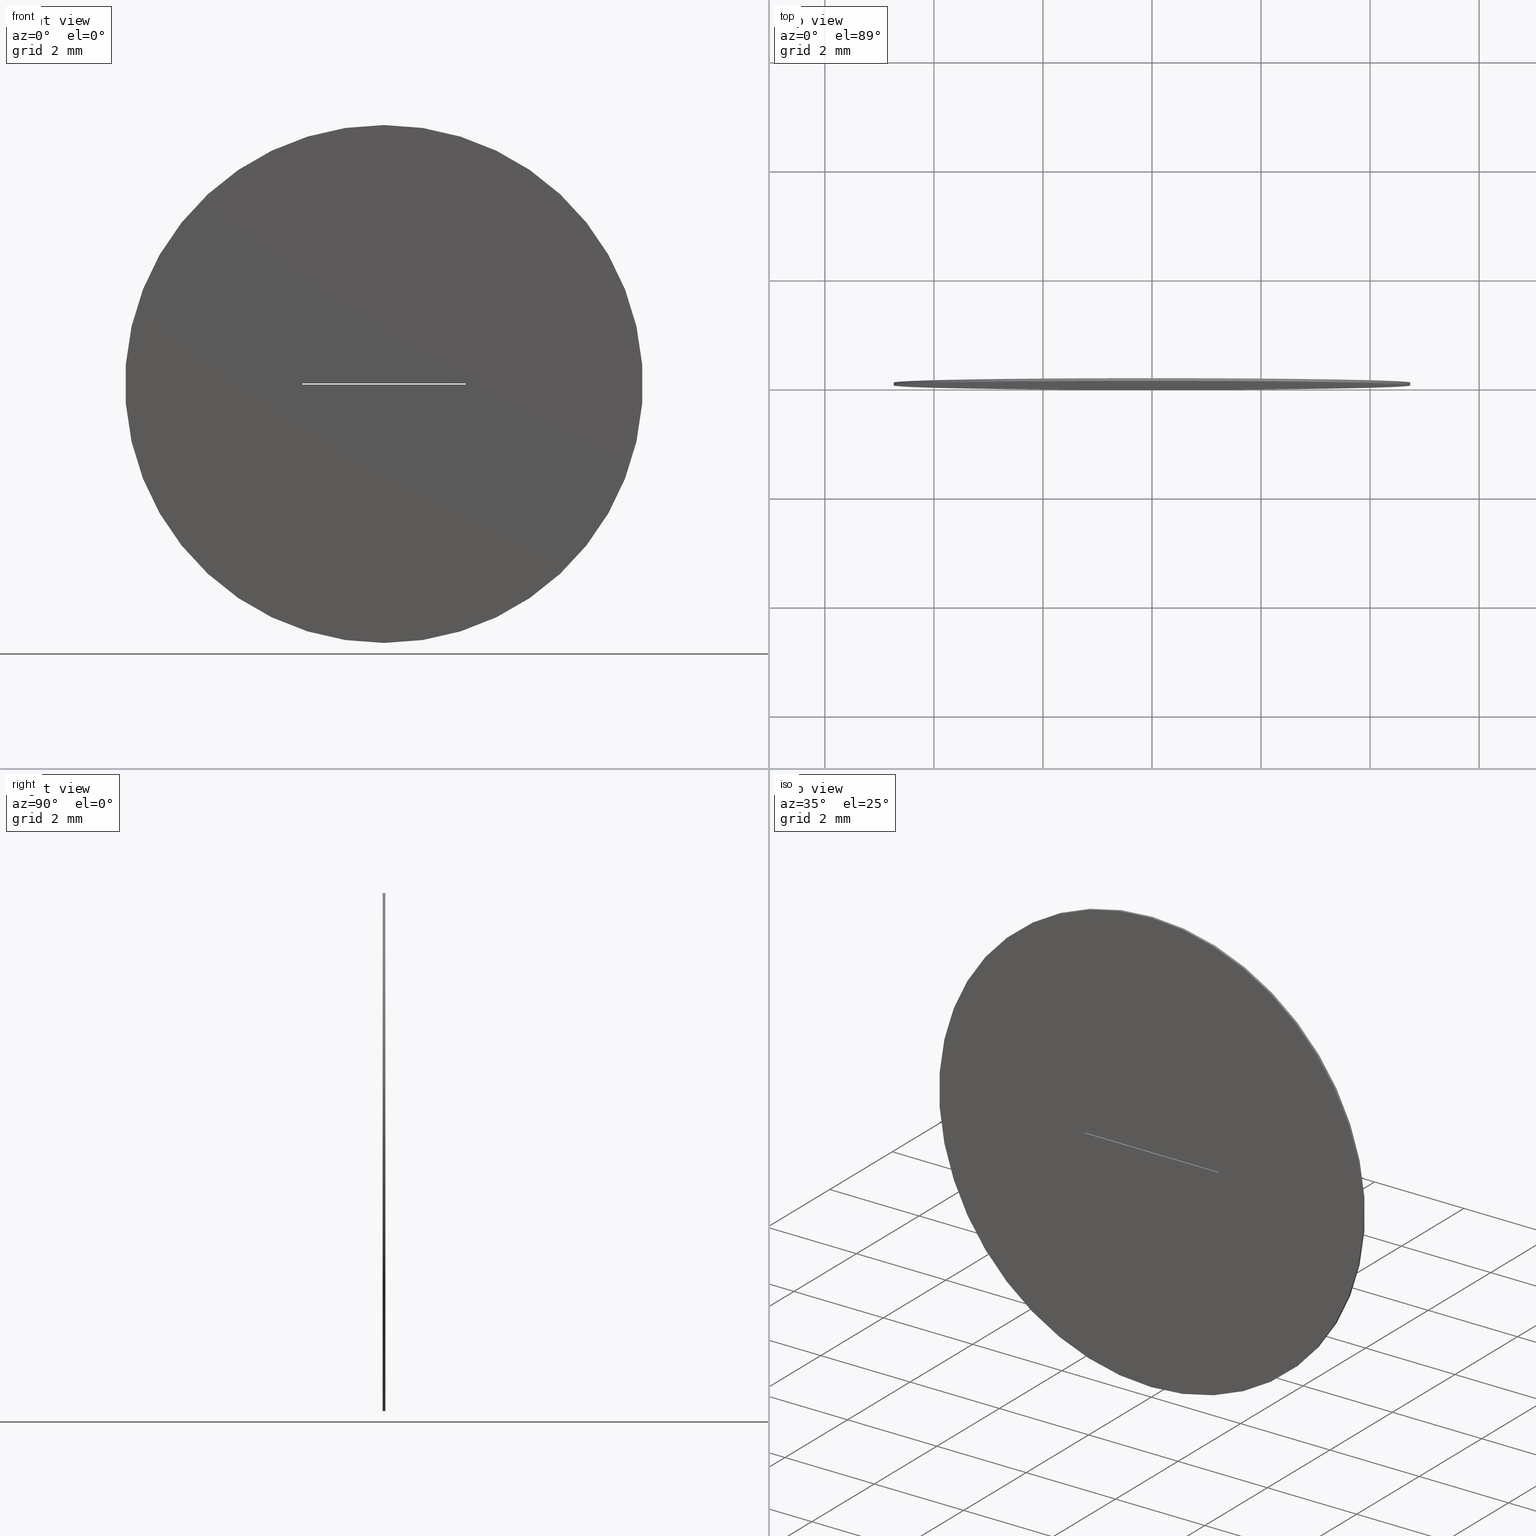
[diagram: canonical four-view strip — front | top / right | iso, engineering-drawing reading convention]
A machine part, canonical four-view strip (front | top / right | iso — engineering-drawing reading convention). The complete STEP part file that produces these views, byte-faithful:
ISO-10303-21;
HEADER;
FILE_DESCRIPTION (( 'STEP AP203' ),
    '1' );
FILE_NAME ('1.5.4.3-ZXG-9.5-20.STEP',
    '2024-05-29T06:48:23',
    ( '' ),
    ( '' ),
    'SwSTEP 2.0',
    'SolidWorks 2021',
    '' );
FILE_SCHEMA (( 'CONFIG_CONTROL_DESIGN' ));
ENDSEC;

DATA;
#1 = APPROVAL_ROLE ( '' ) ;
#2 = CARTESIAN_POINT ( 'NONE',  ( -1.500000000000000000, 0.05000000000000000278, -0.009999999999999998473 ) ) ;
#3 = DIRECTION ( 'NONE',  ( 0.000000000000000000, 1.000000000000000000, 0.000000000000000000 ) ) ;
#4 = VECTOR ( 'NONE', #85, 1000.000000000000000 ) ;
#5 = APPROVAL_DATE_TIME ( #172, #272 ) ;
#6 = CARTESIAN_POINT ( 'NONE',  ( -1.500000000000000000, 0.000000000000000000, 0.01000000000000000194 ) ) ;
#7 = FACE_BOUND ( 'NONE', #42, .T. ) ;
#8 = CARTESIAN_POINT ( 'NONE',  ( -1.500000000000000000, 0.05000000000000000278, 0.01000000000000000194 ) ) ;
#9 = DIRECTION ( 'NONE',  ( 0.000000000000000000, 0.000000000000000000, -1.000000000000000000 ) ) ;
#10 =( NAMED_UNIT ( * ) PLANE_ANGLE_UNIT ( ) SI_UNIT ( $, .RADIAN. ) );
#11 = CARTESIAN_POINT ( 'NONE',  ( 0.000000000000000000, 0.000000000000000000, 0.000000000000000000 ) ) ;
#12 = AXIS2_PLACEMENT_3D ( 'NONE', #252, #253, #300 ) ;
#13 = CARTESIAN_POINT ( 'NONE',  ( 0.000000000000000000, 0.05000000000000000278, -4.750000000000000000 ) ) ;
#14 = CC_DESIGN_DATE_AND_TIME_ASSIGNMENT ( #230, #287, ( #48 ) ) ;
#15 = DIRECTION ( 'NONE',  ( 0.000000000000000000, 0.000000000000000000, 1.000000000000000000 ) ) ;
#16 = CALENDAR_DATE ( 2024, 29, 5 ) ;
#17 = AXIS2_PLACEMENT_3D ( 'NONE', #177, #274, #9 ) ;
#18 = APPROVAL_STATUS ( 'not_yet_approved' ) ;
#19 = VERTEX_POINT ( 'NONE', #2 ) ;
#20 = ORIENTED_EDGE ( 'NONE', *, *, #175, .F. ) ;
#21 = EDGE_LOOP ( 'NONE', ( #285, #138 ) ) ;
#22 = AXIS2_PLACEMENT_3D ( 'NONE', #96, #201, #176 ) ;
#23 = ADVANCED_FACE ( 'NONE', ( #174 ), #53, .T. ) ;
#24 = PERSON_AND_ORGANIZATION ( #246, #29 ) ;
#25 = ORIENTED_EDGE ( 'NONE', *, *, #279, .F. ) ;
#26 = ORIENTED_EDGE ( 'NONE', *, *, #221, .T. ) ;
#27 = PLANE ( 'NONE',  #22 ) ;
#28 = APPROVAL_PERSON_ORGANIZATION ( #261, #272, #74 ) ;
#29 = ORGANIZATION ( 'δָ��', 'δָ��', '' ) ;
#30 = EDGE_CURVE ( 'NONE', #211, #290, #218, .T. ) ;
#31 = DIRECTION ( 'NONE',  ( 0.000000000000000000, -0.000000000000000000, 1.000000000000000000 ) ) ;
#32 = CARTESIAN_POINT ( 'NONE',  ( 5.817072295949927426E-16, 0.05000000000000000278, 4.750000000000000000 ) ) ;
#33 = PLANE ( 'NONE',  #102 ) ;
#34 = CC_DESIGN_APPROVAL ( #272, ( #48 ) ) ;
#35 = LINE ( 'NONE', #271, #244 ) ;
#36 = CARTESIAN_POINT ( 'NONE',  ( -1.500000000000000000, 0.000000000000000000, 0.01000000000000000194 ) ) ;
#37 = APPROVAL_PERSON_ORGANIZATION ( #206, #144, #1 ) ;
#38 = APPLICATION_PROTOCOL_DEFINITION ( 'international standard', 'config_control_design', 1994, #276 ) ;
#39 = PERSON_AND_ORGANIZATION ( #246, #29 ) ;
#40 = VECTOR ( 'NONE', #185, 1000.000000000000000 ) ;
#41 = EDGE_LOOP ( 'NONE', ( #91, #147, #26, #194 ) ) ;
#42 = EDGE_LOOP ( 'NONE', ( #188, #140, #89, #25 ) ) ;
#43 = APPLICATION_PROTOCOL_DEFINITION ( 'international standard', 'config_control_design', 1994, #212 ) ;
#44 = PERSON_AND_ORGANIZATION_ROLE ( 'classification_officer' ) ;
#45 = VERTEX_POINT ( 'NONE', #198 ) ;
#46 = CALENDAR_DATE ( 2024, 29, 5 ) ;
#47 = ORIENTED_EDGE ( 'NONE', *, *, #279, .T. ) ;
#48 = SECURITY_CLASSIFICATION ( '', '', #113 ) ;
#49 = PRODUCT_DEFINITION_SHAPE ( 'NONE', 'NONE',  #213 ) ;
#50 = ORIENTED_EDGE ( 'NONE', *, *, #119, .T. ) ;
#51 = CC_DESIGN_PERSON_AND_ORGANIZATION_ASSIGNMENT ( #24, #142, ( #213 ) ) ;
#52 = CARTESIAN_POINT ( 'NONE',  ( 1.500000000000000000, 0.05000000000000000278, -0.009999999999999998473 ) ) ;
#53 = PLANE ( 'NONE',  #17 ) ;
#54 = LOCAL_TIME ( 14, 48, 23.00000000000000000, #169 ) ;
#55 = DIRECTION ( 'NONE',  ( -0.000000000000000000, -1.000000000000000000, -0.000000000000000000 ) ) ;
#56 = LINE ( 'NONE', #98, #160 ) ;
#57 = DIRECTION ( 'NONE',  ( -1.000000000000000000, 0.000000000000000000, 0.000000000000000000 ) ) ;
#58 = CIRCLE ( 'NONE', #151, 4.750000000000000000 ) ;
#59 = LINE ( 'NONE', #283, #231 ) ;
#60 = CYLINDRICAL_SURFACE ( 'NONE', #277, 4.750000000000000000 ) ;
#61 = ADVANCED_FACE ( 'NONE', ( #295 ), #299, .T. ) ;
#62 = FACE_OUTER_BOUND ( 'NONE', #265, .T. ) ;
#63 = LINE ( 'NONE', #161, #40 ) ;
#64 = ADVANCED_FACE ( 'NONE', ( #150, #217 ), #27, .F. ) ;
#65 = PRODUCT_DEFINITION_FORMATION_WITH_SPECIFIED_SOURCE ( '�κ�', '', #99, .NOT_KNOWN. ) ;
#66 = APPROVAL_DATE_TIME ( #88, #286 ) ;
#67 = ORIENTED_EDGE ( 'NONE', *, *, #156, .T. ) ;
#68 = PERSON_AND_ORGANIZATION_ROLE ( 'design_supplier' ) ;
#69 = ORIENTED_EDGE ( 'NONE', *, *, #95, .T. ) ;
#70 = ORIENTED_EDGE ( 'NONE', *, *, #291, .T. ) ;
#71 = APPROVAL_STATUS ( 'not_yet_approved' ) ;
#72 = EDGE_LOOP ( 'NONE', ( #241, #186, #170, #171 ) ) ;
#73 = AXIS2_PLACEMENT_3D ( 'NONE', #11, #278, #130 ) ;
#74 = APPROVAL_ROLE ( '' ) ;
#75 = DIRECTION ( 'NONE',  ( 0.000000000000000000, 0.000000000000000000, -1.000000000000000000 ) ) ;
#76 = ADVANCED_FACE ( 'NONE', ( #245 ), #294, .T. ) ;
#77 = DIRECTION ( 'NONE',  ( 0.000000000000000000, 0.000000000000000000, 1.000000000000000000 ) ) ;
#78 = DIRECTION ( 'NONE',  ( 0.000000000000000000, 0.000000000000000000, 1.000000000000000000 ) ) ;
#79 = AXIS2_PLACEMENT_3D ( 'NONE', #83, #15, #108 ) ;
#80 = FACE_OUTER_BOUND ( 'NONE', #309, .T. ) ;
#81 = CARTESIAN_POINT ( 'NONE',  ( 1.500000000000000000, 0.05000000000000000278, 0.01000000000000000194 ) ) ;
#82 = UNCERTAINTY_MEASURE_WITH_UNIT (LENGTH_MEASURE( 1.000000000000000082E-05 ), #226, 'distance_accuracy_value', 'NONE');
#83 = CARTESIAN_POINT ( 'NONE',  ( -1.500000000000000000, 0.05000000000000000278, -0.009999999999999998473 ) ) ;
#84 = CARTESIAN_POINT ( 'NONE',  ( 0.000000000000000000, 0.000000000000000000, 0.000000000000000000 ) ) ;
#85 = DIRECTION ( 'NONE',  ( -0.000000000000000000, -0.000000000000000000, -1.000000000000000000 ) ) ;
#86 = EDGE_CURVE ( 'NONE', #290, #118, #153, .T. ) ;
#87 = LINE ( 'NONE', #203, #189 ) ;
#88 = DATE_AND_TIME ( #165, #116 ) ;
#89 = ORIENTED_EDGE ( 'NONE', *, *, #291, .F. ) ;
#90 = PERSON_AND_ORGANIZATION ( #246, #29 ) ;
#91 = ORIENTED_EDGE ( 'NONE', *, *, #156, .F. ) ;
#92 = AXIS2_PLACEMENT_3D ( 'NONE', #199, #125, #154 ) ;
#93 = ORIENTED_EDGE ( 'NONE', *, *, #192, .F. ) ;
#94 = VERTEX_POINT ( 'NONE', #97 ) ;
#95 = EDGE_CURVE ( 'NONE', #163, #45, #129, .T. ) ;
#96 = CARTESIAN_POINT ( 'NONE',  ( 0.000000000000000000, 0.000000000000000000, 0.000000000000000000 ) ) ;
#97 = CARTESIAN_POINT ( 'NONE',  ( 1.500000000000000000, 0.05000000000000000278, -0.009999999999999998473 ) ) ;
#98 = CARTESIAN_POINT ( 'NONE',  ( -1.500000000000000000, 0.05000000000000000278, -0.009999999999999998473 ) ) ;
#99 = PRODUCT ( '1.5.4.3-ZXG-9.5-20', '1.5.4.3-ZXG-9.5-20', '', ( #263 ) ) ;
#100 = EDGE_CURVE ( 'NONE', #292, #118, #222, .T. ) ;
#101 = CARTESIAN_POINT ( 'NONE',  ( 1.500000000000000000, 0.000000000000000000, 0.01000000000000000194 ) ) ;
#102 = AXIS2_PLACEMENT_3D ( 'NONE', #215, #3, #31 ) ;
#103 = CYLINDRICAL_SURFACE ( 'NONE', #297, 4.750000000000000000 ) ;
#104 = DIRECTION ( 'NONE',  ( 0.000000000000000000, 1.000000000000000000, 0.000000000000000000 ) ) ;
#105 = DIRECTION ( 'NONE',  ( -0.000000000000000000, -1.000000000000000000, -0.000000000000000000 ) ) ;
#106 = EDGE_CURVE ( 'NONE', #120, #290, #35, .T. ) ;
#107 = AXIS2_PLACEMENT_3D ( 'NONE', #8, #75, #267 ) ;
#108 = DIRECTION ( 'NONE',  ( 1.000000000000000000, 0.000000000000000000, -0.000000000000000000 ) ) ;
#109 = COORDINATED_UNIVERSAL_TIME_OFFSET ( 8, 0, .AHEAD. ) ;
#110 = CC_DESIGN_PERSON_AND_ORGANIZATION_ASSIGNMENT ( #232, #259, ( #65 ) ) ;
#111 = VECTOR ( 'NONE', #105, 1000.000000000000000 ) ;
#112 = ORIENTED_EDGE ( 'NONE', *, *, #256, .T. ) ;
#113 = SECURITY_CLASSIFICATION_LEVEL ( 'unclassified' ) ;
#114 = ORIENTED_EDGE ( 'NONE', *, *, #270, .T. ) ;
#115 = ADVANCED_BREP_SHAPE_REPRESENTATION ( '1.5.4.3-ZXG-9.5-20', ( #275, #164 ), #122 ) ;
#116 = LOCAL_TIME ( 14, 48, 23.00000000000000000, #234 ) ;
#117 = ORIENTED_EDGE ( 'NONE', *, *, #30, .T. ) ;
#118 = VERTEX_POINT ( 'NONE', #101 ) ;
#119 = EDGE_CURVE ( 'NONE', #214, #120, #173, .T. ) ;
#120 = VERTEX_POINT ( 'NONE', #266 ) ;
#121 = DIRECTION ( 'NONE',  ( -0.000000000000000000, -1.000000000000000000, -0.000000000000000000 ) ) ;
#122 =( GEOMETRIC_REPRESENTATION_CONTEXT ( 3 ) GLOBAL_UNCERTAINTY_ASSIGNED_CONTEXT ( ( #82 ) ) GLOBAL_UNIT_ASSIGNED_CONTEXT ( ( #226, #10, #180 ) ) REPRESENTATION_CONTEXT ( 'NONE', 'WORKASPACE' ) );
#123 = LINE ( 'NONE', #32, #200 ) ;
#124 = CARTESIAN_POINT ( 'NONE',  ( -1.500000000000000000, 0.05000000000000000278, -0.009999999999999998473 ) ) ;
#125 = DIRECTION ( 'NONE',  ( 0.000000000000000000, 1.000000000000000000, 0.000000000000000000 ) ) ;
#126 = LINE ( 'NONE', #127, #302 ) ;
#127 = CARTESIAN_POINT ( 'NONE',  ( -1.500000000000000000, 0.05000000000000000278, 0.01000000000000000194 ) ) ;
#128 = CC_DESIGN_SECURITY_CLASSIFICATION ( #48, ( #65 ) ) ;
#129 = CIRCLE ( 'NONE', #92, 4.750000000000000000 ) ;
#130 = DIRECTION ( 'NONE',  ( 0.000000000000000000, 0.000000000000000000, 1.000000000000000000 ) ) ;
#131 = CC_DESIGN_DATE_AND_TIME_ASSIGNMENT ( #137, #190, ( #213 ) ) ;
#132 = ADVANCED_FACE ( 'NONE', ( #243 ), #103, .T. ) ;
#133 = DIRECTION ( 'NONE',  ( 0.000000000000000000, 0.000000000000000000, 1.000000000000000000 ) ) ;
#134 = CC_DESIGN_PERSON_AND_ORGANIZATION_ASSIGNMENT ( #90, #68, ( #65 ) ) ;
#135 = COORDINATED_UNIVERSAL_TIME_OFFSET ( 8, 0, .AHEAD. ) ;
#136 = VECTOR ( 'NONE', #197, 1000.000000000000000 ) ;
#137 = DATE_AND_TIME ( #16, #269 ) ;
#138 = ORIENTED_EDGE ( 'NONE', *, *, #248, .F. ) ;
#139 = ORIENTED_EDGE ( 'NONE', *, *, #106, .T. ) ;
#140 = ORIENTED_EDGE ( 'NONE', *, *, #256, .F. ) ;
#141 = DATE_AND_TIME ( #46, #54 ) ;
#142 = PERSON_AND_ORGANIZATION_ROLE ( 'creator' ) ;
#143 = ORIENTED_EDGE ( 'NONE', *, *, #100, .T. ) ;
#144 = APPROVAL ( #18, 'δָ��' ) ;
#145 = ADVANCED_FACE ( 'NONE', ( #80, #7 ), #33, .T. ) ;
#146 = COORDINATED_UNIVERSAL_TIME_OFFSET ( 8, 0, .AHEAD. ) ;
#147 = ORIENTED_EDGE ( 'NONE', *, *, #301, .F. ) ;
#148 = SHAPE_DEFINITION_REPRESENTATION ( #49, #115 ) ;
#149 = DIRECTION ( 'NONE',  ( -0.000000000000000000, -1.000000000000000000, -0.000000000000000000 ) ) ;
#150 = FACE_OUTER_BOUND ( 'NONE', #21, .T. ) ;
#151 = AXIS2_PLACEMENT_3D ( 'NONE', #84, #104, #158 ) ;
#152 = LINE ( 'NONE', #124, #205 ) ;
#153 = LINE ( 'NONE', #6, #155 ) ;
#154 = DIRECTION ( 'NONE',  ( 0.000000000000000000, 0.000000000000000000, 1.000000000000000000 ) ) ;
#155 = VECTOR ( 'NONE', #196, 1000.000000000000000 ) ;
#156 = EDGE_CURVE ( 'NONE', #163, #191, #123, .T. ) ;
#157 = DIRECTION ( 'NONE',  ( -0.000000000000000000, -1.000000000000000000, -0.000000000000000000 ) ) ;
#158 = DIRECTION ( 'NONE',  ( 0.000000000000000000, 0.000000000000000000, 1.000000000000000000 ) ) ;
#159 = DIRECTION ( 'NONE',  ( 0.000000000000000000, 0.000000000000000000, -1.000000000000000000 ) ) ;
#160 = VECTOR ( 'NONE', #296, 1000.000000000000000 ) ;
#161 = CARTESIAN_POINT ( 'NONE',  ( -1.500000000000000000, 0.05000000000000000278, -0.009999999999999998473 ) ) ;
#162 = PLANE ( 'NONE',  #79 ) ;
#163 = VERTEX_POINT ( 'NONE', #247 ) ;
#164 = AXIS2_PLACEMENT_3D ( 'NONE', #305, #133, #227 ) ;
#165 = CALENDAR_DATE ( 2024, 29, 5 ) ;
#166 = ORIENTED_EDGE ( 'NONE', *, *, #100, .F. ) ;
#167 = CALENDAR_DATE ( 2024, 29, 5 ) ;
#168 = ORIENTED_EDGE ( 'NONE', *, *, #86, .F. ) ;
#169 = COORDINATED_UNIVERSAL_TIME_OFFSET ( 8, 0, .AHEAD. ) ;
#170 = ORIENTED_EDGE ( 'NONE', *, *, #179, .T. ) ;
#171 = ORIENTED_EDGE ( 'NONE', *, *, #175, .T. ) ;
#172 = DATE_AND_TIME ( #219, #268 ) ;
#173 = LINE ( 'NONE', #249, #136 ) ;
#174 = FACE_OUTER_BOUND ( 'NONE', #258, .T. ) ;
#175 = EDGE_CURVE ( 'NONE', #19, #120, #56, .T. ) ;
#176 = DIRECTION ( 'NONE',  ( 0.000000000000000000, -0.000000000000000000, 1.000000000000000000 ) ) ;
#177 = CARTESIAN_POINT ( 'NONE',  ( -1.500000000000000000, 0.05000000000000000278, -0.009999999999999998473 ) ) ;
#178 = CARTESIAN_POINT ( 'NONE',  ( 0.000000000000000000, 0.05000000000000000278, 0.000000000000000000 ) ) ;
#179 = EDGE_CURVE ( 'NONE', #94, #19, #152, .T. ) ;
#180 =( NAMED_UNIT ( * ) SI_UNIT ( $, .STERADIAN. ) SOLID_ANGLE_UNIT ( ) );
#181 = CIRCLE ( 'NONE', #12, 4.750000000000000000 ) ;
#182 = DIRECTION ( 'NONE',  ( -0.000000000000000000, -1.000000000000000000, -0.000000000000000000 ) ) ;
#183 = CC_DESIGN_PERSON_AND_ORGANIZATION_ASSIGNMENT ( #39, #44, ( #48 ) ) ;
#184 = CARTESIAN_POINT ( 'NONE',  ( 5.817072295949927426E-16, 0.000000000000000000, 4.750000000000000000 ) ) ;
#185 = DIRECTION ( 'NONE',  ( 0.000000000000000000, 0.000000000000000000, 1.000000000000000000 ) ) ;
#186 = ORIENTED_EDGE ( 'NONE', *, *, #270, .F. ) ;
#187 = APPROVAL_ROLE ( '' ) ;
#188 = ORIENTED_EDGE ( 'NONE', *, *, #179, .F. ) ;
#189 = VECTOR ( 'NONE', #182, 1000.000000000000000 ) ;
#190 = DATE_TIME_ROLE ( 'creation_date' ) ;
#191 = VERTEX_POINT ( 'NONE', #184 ) ;
#192 = EDGE_CURVE ( 'NONE', #118, #214, #251, .T. ) ;
#193 = ORIENTED_EDGE ( 'NONE', *, *, #106, .F. ) ;
#194 = ORIENTED_EDGE ( 'NONE', *, *, #209, .T. ) ;
#195 = VECTOR ( 'NONE', #55, 1000.000000000000000 ) ;
#196 = DIRECTION ( 'NONE',  ( 1.000000000000000000, 0.000000000000000000, 0.000000000000000000 ) ) ;
#197 = DIRECTION ( 'NONE',  ( -1.000000000000000000, -0.000000000000000000, -0.000000000000000000 ) ) ;
#198 = CARTESIAN_POINT ( 'NONE',  ( 0.000000000000000000, 0.05000000000000000278, -4.750000000000000000 ) ) ;
#199 = CARTESIAN_POINT ( 'NONE',  ( 0.000000000000000000, 0.05000000000000000278, 0.000000000000000000 ) ) ;
#200 = VECTOR ( 'NONE', #121, 1000.000000000000000 ) ;
#201 = DIRECTION ( 'NONE',  ( 0.000000000000000000, 1.000000000000000000, 0.000000000000000000 ) ) ;
#202 = DIRECTION ( 'NONE',  ( -0.000000000000000000, -0.000000000000000000, -1.000000000000000000 ) ) ;
#203 = CARTESIAN_POINT ( 'NONE',  ( 1.500000000000000000, 0.05000000000000000278, -0.009999999999999998473 ) ) ;
#204 = CARTESIAN_POINT ( 'NONE',  ( 1.500000000000000000, 0.05000000000000000278, 0.01000000000000000194 ) ) ;
#205 = VECTOR ( 'NONE', #273, 1000.000000000000000 ) ;
#206 = PERSON_AND_ORGANIZATION ( #246, #29 ) ;
#207 = EDGE_LOOP ( 'NONE', ( #93, #166, #112, #114 ) ) ;
#208 = ORIENTED_EDGE ( 'NONE', *, *, #86, .T. ) ;
#209 = EDGE_CURVE ( 'NONE', #308, #191, #254, .T. ) ;
#210 = APPROVAL_PERSON_ORGANIZATION ( #307, #286, #187 ) ;
#211 = VERTEX_POINT ( 'NONE', #304 ) ;
#212 = APPLICATION_CONTEXT ( 'configuration controlled 3d designs of mechanical parts and assemblies' ) ;
#213 = PRODUCT_DEFINITION ( 'δ֪', '', #65, #240 ) ;
#214 = VERTEX_POINT ( 'NONE', #257 ) ;
#215 = CARTESIAN_POINT ( 'NONE',  ( 0.000000000000000000, 0.05000000000000000278, 0.000000000000000000 ) ) ;
#216 = CLOSED_SHELL ( 'NONE', ( #260, #145, #64, #132, #61, #281, #23, #76 ) ) ;
#217 = FACE_BOUND ( 'NONE', #233, .T. ) ;
#218 = LINE ( 'NONE', #220, #195 ) ;
#219 = CALENDAR_DATE ( 2024, 29, 5 ) ;
#220 = CARTESIAN_POINT ( 'NONE',  ( -1.500000000000000000, 0.05000000000000000278, 0.01000000000000000194 ) ) ;
#221 = EDGE_CURVE ( 'NONE', #45, #308, #224, .T. ) ;
#222 = LINE ( 'NONE', #81, #289 ) ;
#223 = DIRECTION ( 'NONE',  ( 1.000000000000000000, 0.000000000000000000, 0.000000000000000000 ) ) ;
#224 = LINE ( 'NONE', #13, #111 ) ;
#225 = CC_DESIGN_APPROVAL ( #144, ( #213 ) ) ;
#226 =( LENGTH_UNIT ( ) NAMED_UNIT ( * ) SI_UNIT ( .MILLI., .METRE. ) );
#227 = DIRECTION ( 'NONE',  ( 1.000000000000000000, 0.000000000000000000, 0.000000000000000000 ) ) ;
#228 = CC_DESIGN_PERSON_AND_ORGANIZATION_ASSIGNMENT ( #229, #284, ( #99 ) ) ;
#229 = PERSON_AND_ORGANIZATION ( #246, #29 ) ;
#230 = DATE_AND_TIME ( #167, #293 ) ;
#231 = VECTOR ( 'NONE', #202, 1000.000000000000000 ) ;
#232 = PERSON_AND_ORGANIZATION ( #246, #29 ) ;
#233 = EDGE_LOOP ( 'NONE', ( #239, #50, #139, #208 ) ) ;
#234 = COORDINATED_UNIVERSAL_TIME_OFFSET ( 8, 0, .AHEAD. ) ;
#235 = ORIENTED_EDGE ( 'NONE', *, *, #248, .T. ) ;
#236 = EDGE_LOOP ( 'NONE', ( #168, #264, #70, #143 ) ) ;
#237 = AXIS2_PLACEMENT_3D ( 'NONE', #52, #57, #78 ) ;
#238 = APPROVAL_DATE_TIME ( #141, #144 ) ;
#239 = ORIENTED_EDGE ( 'NONE', *, *, #192, .T. ) ;
#240 = DESIGN_CONTEXT ( 'detailed design', #212, 'design' ) ;
#241 = ORIENTED_EDGE ( 'NONE', *, *, #119, .F. ) ;
#242 = PRODUCT_RELATED_PRODUCT_CATEGORY ( 'detail', '', ( #99 ) ) ;
#243 = FACE_OUTER_BOUND ( 'NONE', #41, .T. ) ;
#244 = VECTOR ( 'NONE', #77, 1000.000000000000000 ) ;
#245 = FACE_OUTER_BOUND ( 'NONE', #236, .T. ) ;
#246 = PERSON ( 'δָ��', 'δָ��', 'δָ��', ('δָ��'), ('δָ��'), ('δָ��') ) ;
#247 = CARTESIAN_POINT ( 'NONE',  ( 5.817072295949927426E-16, 0.05000000000000000278, 4.750000000000000000 ) ) ;
#248 = EDGE_CURVE ( 'NONE', #191, #308, #58, .T. ) ;
#249 = CARTESIAN_POINT ( 'NONE',  ( -1.500000000000000000, 0.000000000000000000, -0.009999999999999998473 ) ) ;
#250 = DIRECTION ( 'NONE',  ( -0.000000000000000000, -1.000000000000000000, -0.000000000000000000 ) ) ;
#251 = LINE ( 'NONE', #280, #4 ) ;
#252 = CARTESIAN_POINT ( 'NONE',  ( 0.000000000000000000, 0.05000000000000000278, 0.000000000000000000 ) ) ;
#253 = DIRECTION ( 'NONE',  ( 0.000000000000000000, 1.000000000000000000, 0.000000000000000000 ) ) ;
#254 = CIRCLE ( 'NONE', #73, 4.750000000000000000 ) ;
#255 = CARTESIAN_POINT ( 'NONE',  ( 0.000000000000000000, 0.000000000000000000, -4.750000000000000000 ) ) ;
#256 = EDGE_CURVE ( 'NONE', #292, #94, #59, .T. ) ;
#257 = CARTESIAN_POINT ( 'NONE',  ( 1.500000000000000000, 0.000000000000000000, -0.009999999999999998473 ) ) ;
#258 = EDGE_LOOP ( 'NONE', ( #193, #20, #47, #117 ) ) ;
#259 = PERSON_AND_ORGANIZATION_ROLE ( 'creator' ) ;
#260 = ADVANCED_FACE ( 'NONE', ( #62 ), #60, .T. ) ;
#261 = PERSON_AND_ORGANIZATION ( #246, #29 ) ;
#262 = ORIENTED_EDGE ( 'NONE', *, *, #95, .F. ) ;
#263 = MECHANICAL_CONTEXT ( 'NONE', #276, 'mechanical' ) ;
#264 = ORIENTED_EDGE ( 'NONE', *, *, #30, .F. ) ;
#265 = EDGE_LOOP ( 'NONE', ( #262, #67, #235, #288 ) ) ;
#266 = CARTESIAN_POINT ( 'NONE',  ( -1.500000000000000000, 0.000000000000000000, -0.009999999999999998473 ) ) ;
#267 = DIRECTION ( 'NONE',  ( -1.000000000000000000, 0.000000000000000000, -0.000000000000000000 ) ) ;
#268 = LOCAL_TIME ( 14, 48, 23.00000000000000000, #146 ) ;
#269 = LOCAL_TIME ( 14, 48, 23.00000000000000000, #109 ) ;
#270 = EDGE_CURVE ( 'NONE', #94, #214, #87, .T. ) ;
#271 = CARTESIAN_POINT ( 'NONE',  ( -1.500000000000000000, 0.000000000000000000, -0.009999999999999998473 ) ) ;
#272 = APPROVAL ( #71, 'δָ��' ) ;
#273 = DIRECTION ( 'NONE',  ( -1.000000000000000000, -0.000000000000000000, -0.000000000000000000 ) ) ;
#274 = DIRECTION ( 'NONE',  ( 1.000000000000000000, 0.000000000000000000, 0.000000000000000000 ) ) ;
#275 = MANIFOLD_SOLID_BREP ( '͹̨-����1', #216 ) ;
#276 = APPLICATION_CONTEXT ( 'configuration controlled 3d designs of mechanical parts and assemblies' ) ;
#277 = AXIS2_PLACEMENT_3D ( 'NONE', #282, #157, #159 ) ;
#278 = DIRECTION ( 'NONE',  ( 0.000000000000000000, 1.000000000000000000, 0.000000000000000000 ) ) ;
#279 = EDGE_CURVE ( 'NONE', #19, #211, #63, .T. ) ;
#280 = CARTESIAN_POINT ( 'NONE',  ( 1.500000000000000000, 0.000000000000000000, -0.009999999999999998473 ) ) ;
#281 = ADVANCED_FACE ( 'NONE', ( #303 ), #162, .T. ) ;
#282 = CARTESIAN_POINT ( 'NONE',  ( 0.000000000000000000, 0.05000000000000000278, 0.000000000000000000 ) ) ;
#283 = CARTESIAN_POINT ( 'NONE',  ( 1.500000000000000000, 0.05000000000000000278, -0.009999999999999998473 ) ) ;
#284 = PERSON_AND_ORGANIZATION_ROLE ( 'design_owner' ) ;
#285 = ORIENTED_EDGE ( 'NONE', *, *, #209, .F. ) ;
#286 = APPROVAL ( #310, 'δָ��' ) ;
#287 = DATE_TIME_ROLE ( 'classification_date' ) ;
#288 = ORIENTED_EDGE ( 'NONE', *, *, #221, .F. ) ;
#289 = VECTOR ( 'NONE', #149, 1000.000000000000000 ) ;
#290 = VERTEX_POINT ( 'NONE', #36 ) ;
#291 = EDGE_CURVE ( 'NONE', #211, #292, #126, .T. ) ;
#292 = VERTEX_POINT ( 'NONE', #204 ) ;
#293 = LOCAL_TIME ( 14, 48, 23.00000000000000000, #135 ) ;
#294 = PLANE ( 'NONE',  #107 ) ;
#295 = FACE_OUTER_BOUND ( 'NONE', #207, .T. ) ;
#296 = DIRECTION ( 'NONE',  ( -0.000000000000000000, -1.000000000000000000, -0.000000000000000000 ) ) ;
#297 = AXIS2_PLACEMENT_3D ( 'NONE', #178, #250, #298 ) ;
#298 = DIRECTION ( 'NONE',  ( 0.000000000000000000, 0.000000000000000000, -1.000000000000000000 ) ) ;
#299 = PLANE ( 'NONE',  #237 ) ;
#300 = DIRECTION ( 'NONE',  ( 0.000000000000000000, 0.000000000000000000, 1.000000000000000000 ) ) ;
#301 = EDGE_CURVE ( 'NONE', #45, #163, #181, .T. ) ;
#302 = VECTOR ( 'NONE', #223, 1000.000000000000000 ) ;
#303 = FACE_OUTER_BOUND ( 'NONE', #72, .T. ) ;
#304 = CARTESIAN_POINT ( 'NONE',  ( -1.500000000000000000, 0.05000000000000000278, 0.01000000000000000194 ) ) ;
#305 = CARTESIAN_POINT ( 'NONE',  ( 0.000000000000000000, 0.000000000000000000, 0.000000000000000000 ) ) ;
#306 = CC_DESIGN_APPROVAL ( #286, ( #65 ) ) ;
#307 = PERSON_AND_ORGANIZATION ( #246, #29 ) ;
#308 = VERTEX_POINT ( 'NONE', #255 ) ;
#309 = EDGE_LOOP ( 'NONE', ( #311, #69 ) ) ;
#310 = APPROVAL_STATUS ( 'not_yet_approved' ) ;
#311 = ORIENTED_EDGE ( 'NONE', *, *, #301, .T. ) ;
ENDSEC;
END-ISO-10303-21;
